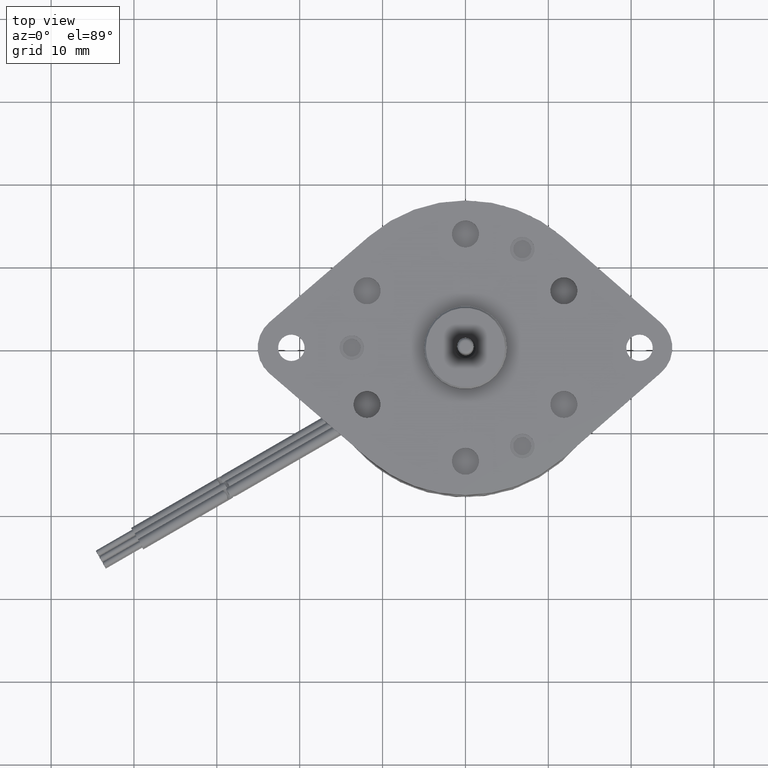
[diagram: clean part render]
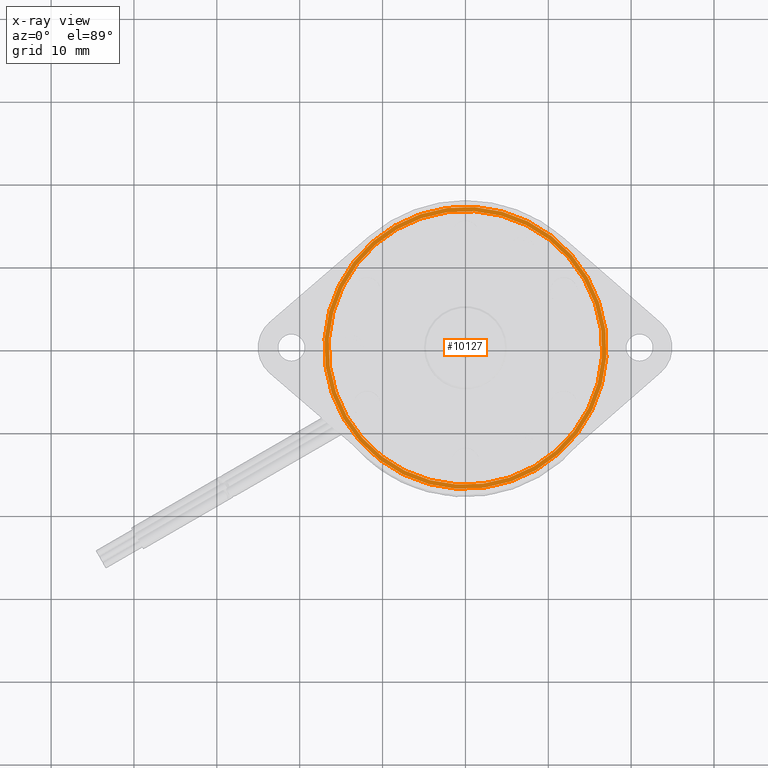
[diagram: x-ray — body ghosted, one internal face saturated and labeled with its STEP entity id]
A machine part, top view, then the same camera in x-ray: the body is ghosted and one INTERNAL B-rep face — a face not visible from any outside direction — is saturated and labeled: STEP entity #10127.
In plain terms, the highlighted planar face has unit normal (0, 0, 1).
Its self-contained STEP definition (entity closure, byte-faithful):
#10023=CARTESIAN_POINT('',(0.E0,0.E0,2.88E-1));
#10024=DIRECTION('',(0.E0,0.E0,1.E0));
#10025=DIRECTION('',(5.E-1,-8.660254037844E-1,0.E0));
#10026=AXIS2_PLACEMENT_3D('',#10023,#10024,#10025);
#10028=CARTESIAN_POINT('',(0.E0,0.E0,2.88E-1));
#10029=DIRECTION('',(0.E0,0.E0,1.E0));
#10030=DIRECTION('',(-5.E-1,8.660254037844E-1,0.E0));
#10031=AXIS2_PLACEMENT_3D('',#10028,#10029,#10030);
#10033=CARTESIAN_POINT('',(0.E0,0.E0,2.88E-1));
#10034=DIRECTION('',(0.E0,0.E0,-1.E0));
#10035=DIRECTION('',(5.E-1,-8.660254037844E-1,0.E0));
#10036=AXIS2_PLACEMENT_3D('',#10033,#10034,#10035);
#10038=CARTESIAN_POINT('',(0.E0,0.E0,2.88E-1));
#10039=DIRECTION('',(0.E0,0.E0,-1.E0));
#10040=DIRECTION('',(-5.E-1,8.660254037844E-1,0.E0));
#10041=AXIS2_PLACEMENT_3D('',#10038,#10039,#10040);
#10079=CARTESIAN_POINT('',(3.2525E-1,-5.633495251618E-1,2.88E-1));
#10080=CARTESIAN_POINT('',(-3.2525E-1,5.633495251618E-1,2.88E-1));
#10081=VERTEX_POINT('',#10079);
#10082=VERTEX_POINT('',#10080);
#10087=CARTESIAN_POINT('',(3.3525E-1,-5.806700332375E-1,2.88E-1));
#10088=CARTESIAN_POINT('',(-3.3525E-1,5.806700332375E-1,2.88E-1));
#10089=VERTEX_POINT('',#10087);
#10090=VERTEX_POINT('',#10088);
#10111=CARTESIAN_POINT('',(0.E0,0.E0,2.88E-1));
#10112=DIRECTION('',(0.E0,0.E0,1.E0));
#10113=DIRECTION('',(5.E-1,-8.660254037844E-1,0.E0));
#10114=AXIS2_PLACEMENT_3D('',#10111,#10112,#10113);
#10115=PLANE('',#10114);
#10117=ORIENTED_EDGE('',*,*,#10116,.T.);
#10119=ORIENTED_EDGE('',*,*,#10118,.T.);
#10120=EDGE_LOOP('',(#10117,#10119));
#10121=FACE_OUTER_BOUND('',#10120,.F.);
#10123=ORIENTED_EDGE('',*,*,#10122,.T.);
#10124=ORIENTED_EDGE('',*,*,#10100,.T.);
#10125=EDGE_LOOP('',(#10123,#10124));
#10126=FACE_BOUND('',#10125,.F.);
#10127=ADVANCED_FACE('',(#10121,#10126),#10115,.F.);
#10027=CIRCLE('',#10026,6.705E-1);
#10032=CIRCLE('',#10031,6.705E-1);
#10037=CIRCLE('',#10036,6.505E-1);
#10042=CIRCLE('',#10041,6.505E-1);
#10100=EDGE_CURVE('',#10082,#10081,#10042,.T.);
#10116=EDGE_CURVE('',#10089,#10090,#10027,.T.);
#10118=EDGE_CURVE('',#10090,#10089,#10032,.T.);
#10122=EDGE_CURVE('',#10081,#10082,#10037,.T.);